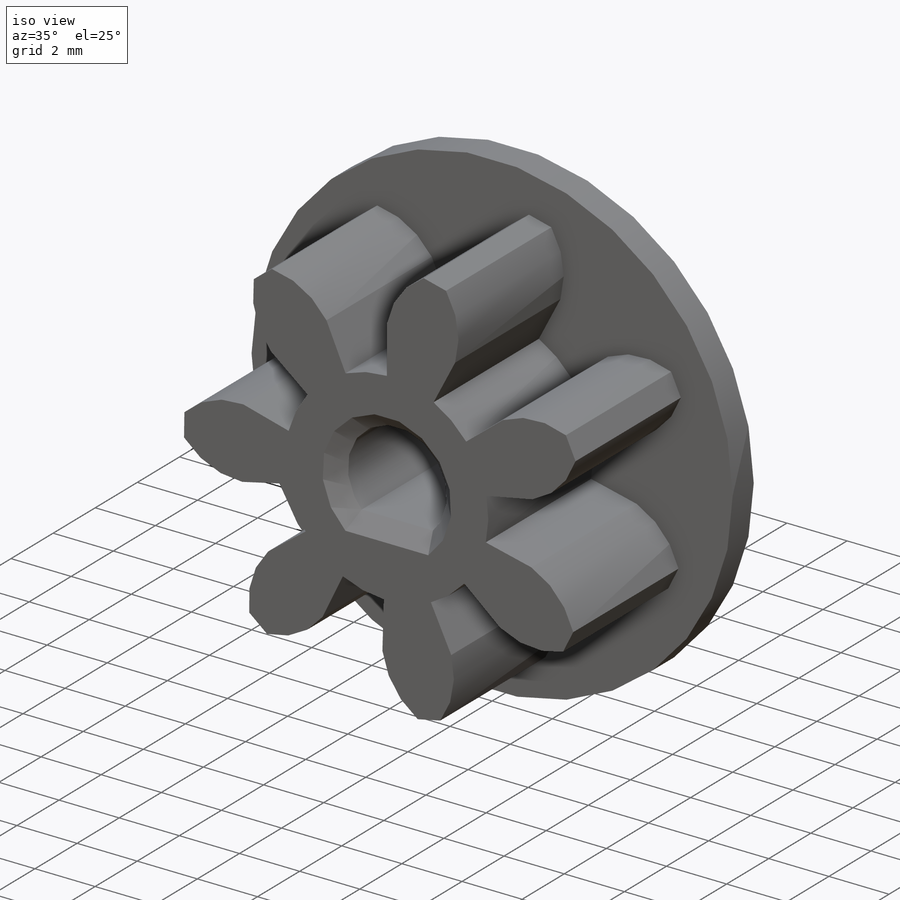
[diagram: iso view]
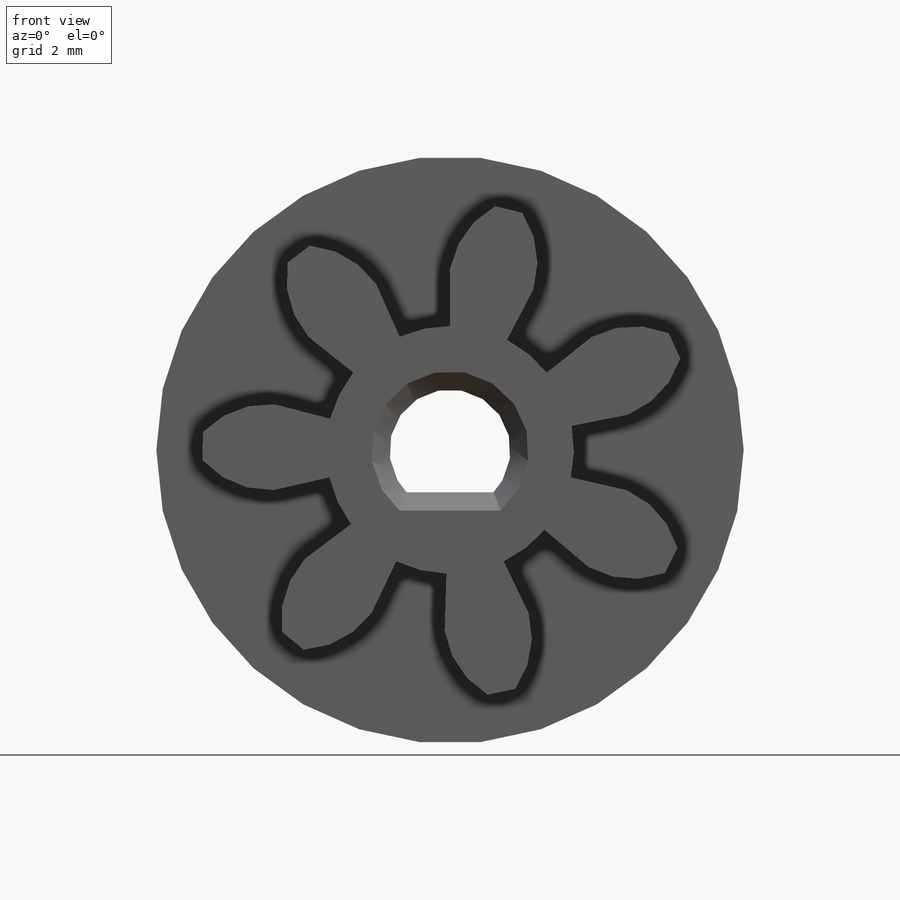
[diagram: front view]
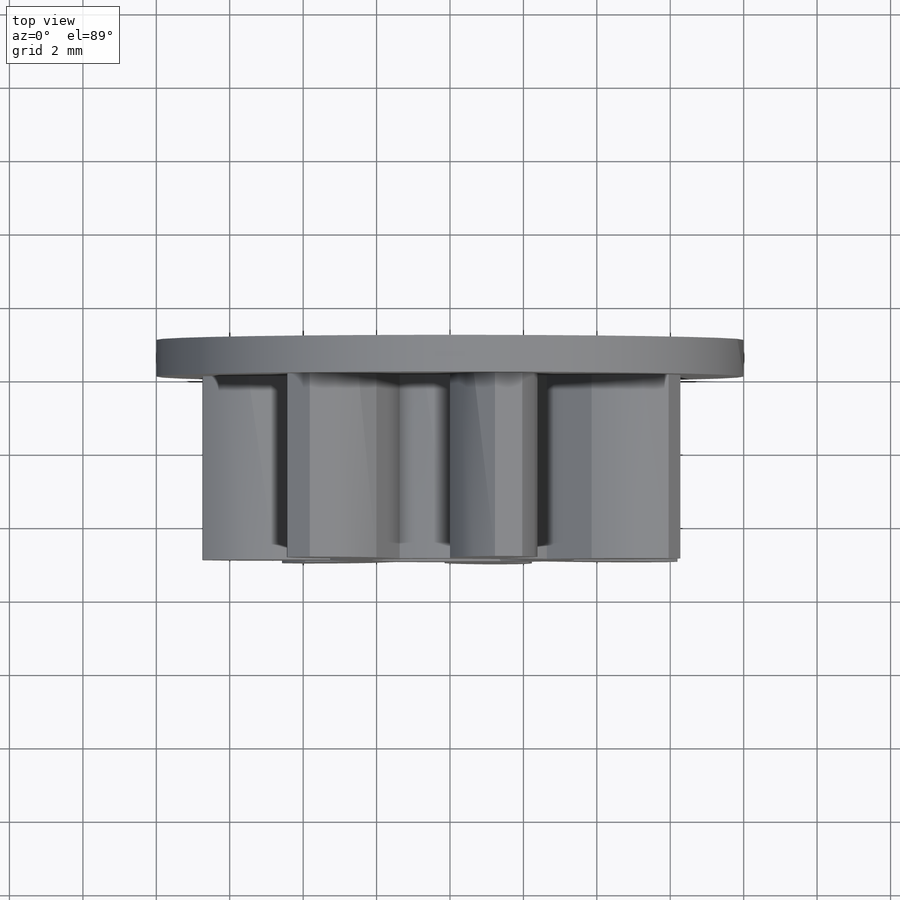
[diagram: top view]
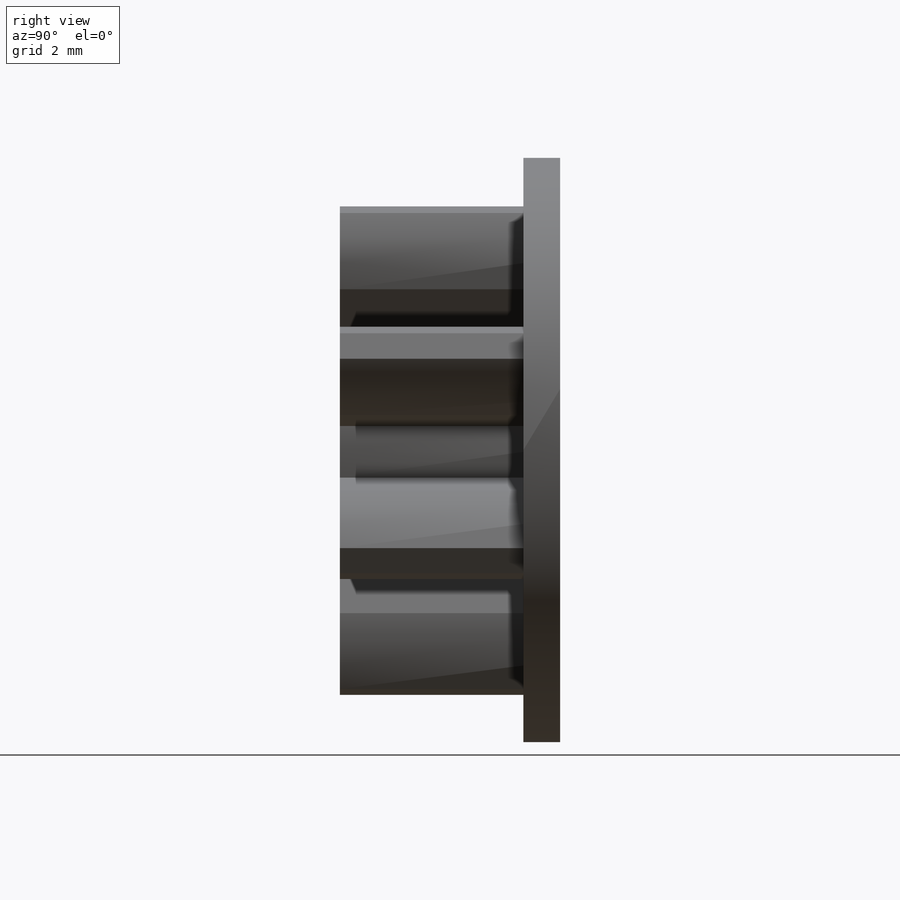
[diagram: right view]
SOLIDWORKS PART (.sldprt)
format: sldprt  version: not decoded by parser v0  size: 344,576 bytes
history: native  units: mm
features: sketch x5, extrude x3, cut_extrude x2, chamfer x2, material x1, pattern_circular x1 (+13 scaffold rows collapsed)
feature tree (27):
  scaffold x13  (default folders/planes/origin — collapsed)
  material  "Material <not specified>"
  sketch  "Sketch2"  dims[D1=13.5mm]
  extrude  "gear outside diameter"  Depth=5mm
  sketch  "Sketch1"  dims[c1.D1=13.5mm c1.D2=10.5mm c1.D3=~9.866773mm c1.D7=6.75mm c1.D4=12.0mm c1.D5=~38.544264mm c2.D5=~0.853958deg c2.D6=~11.276311mm c3.D6=~10.464403deg c3.D4=~11.998667mm c4.D4=~12.857143deg c4.D7=~1.776311mm]
  cut_extrude  "gear tooth cut"  [1 undecoded]
  pattern_circular  "gear teeth"  Count=7 Angle=360deg
  sketch  "Sketch3"  dims[D1=6.75mm]
  extrude  "gear dedendum circle"  [1 undecoded]
  sketch  "Sketch5"  dims[D1=~148.72884mm]
  extrude  "Boss-Extrude1"  Depth=1mm
  sketch  "Sketch4"  dims[D1=3.3mm D2=2.8mm]
  cut_extrude  "Cut-Extrude1"  [1 undecoded]
  chamfer  "Chamfer1"  Distance=1.5mm Angle=45deg
  chamfer  "Chamfer2"  Distance=0.5mm Angle=45deg
decode coverage: 10 of 13 modeling features carry decoded parameters
note: ~ marks probable driven/reference dimensions
note: 3 parameter values undecoded
summary: no parameter record found for 3 features
note: suppression state not decoded; provenance and decode notes live in map.json
